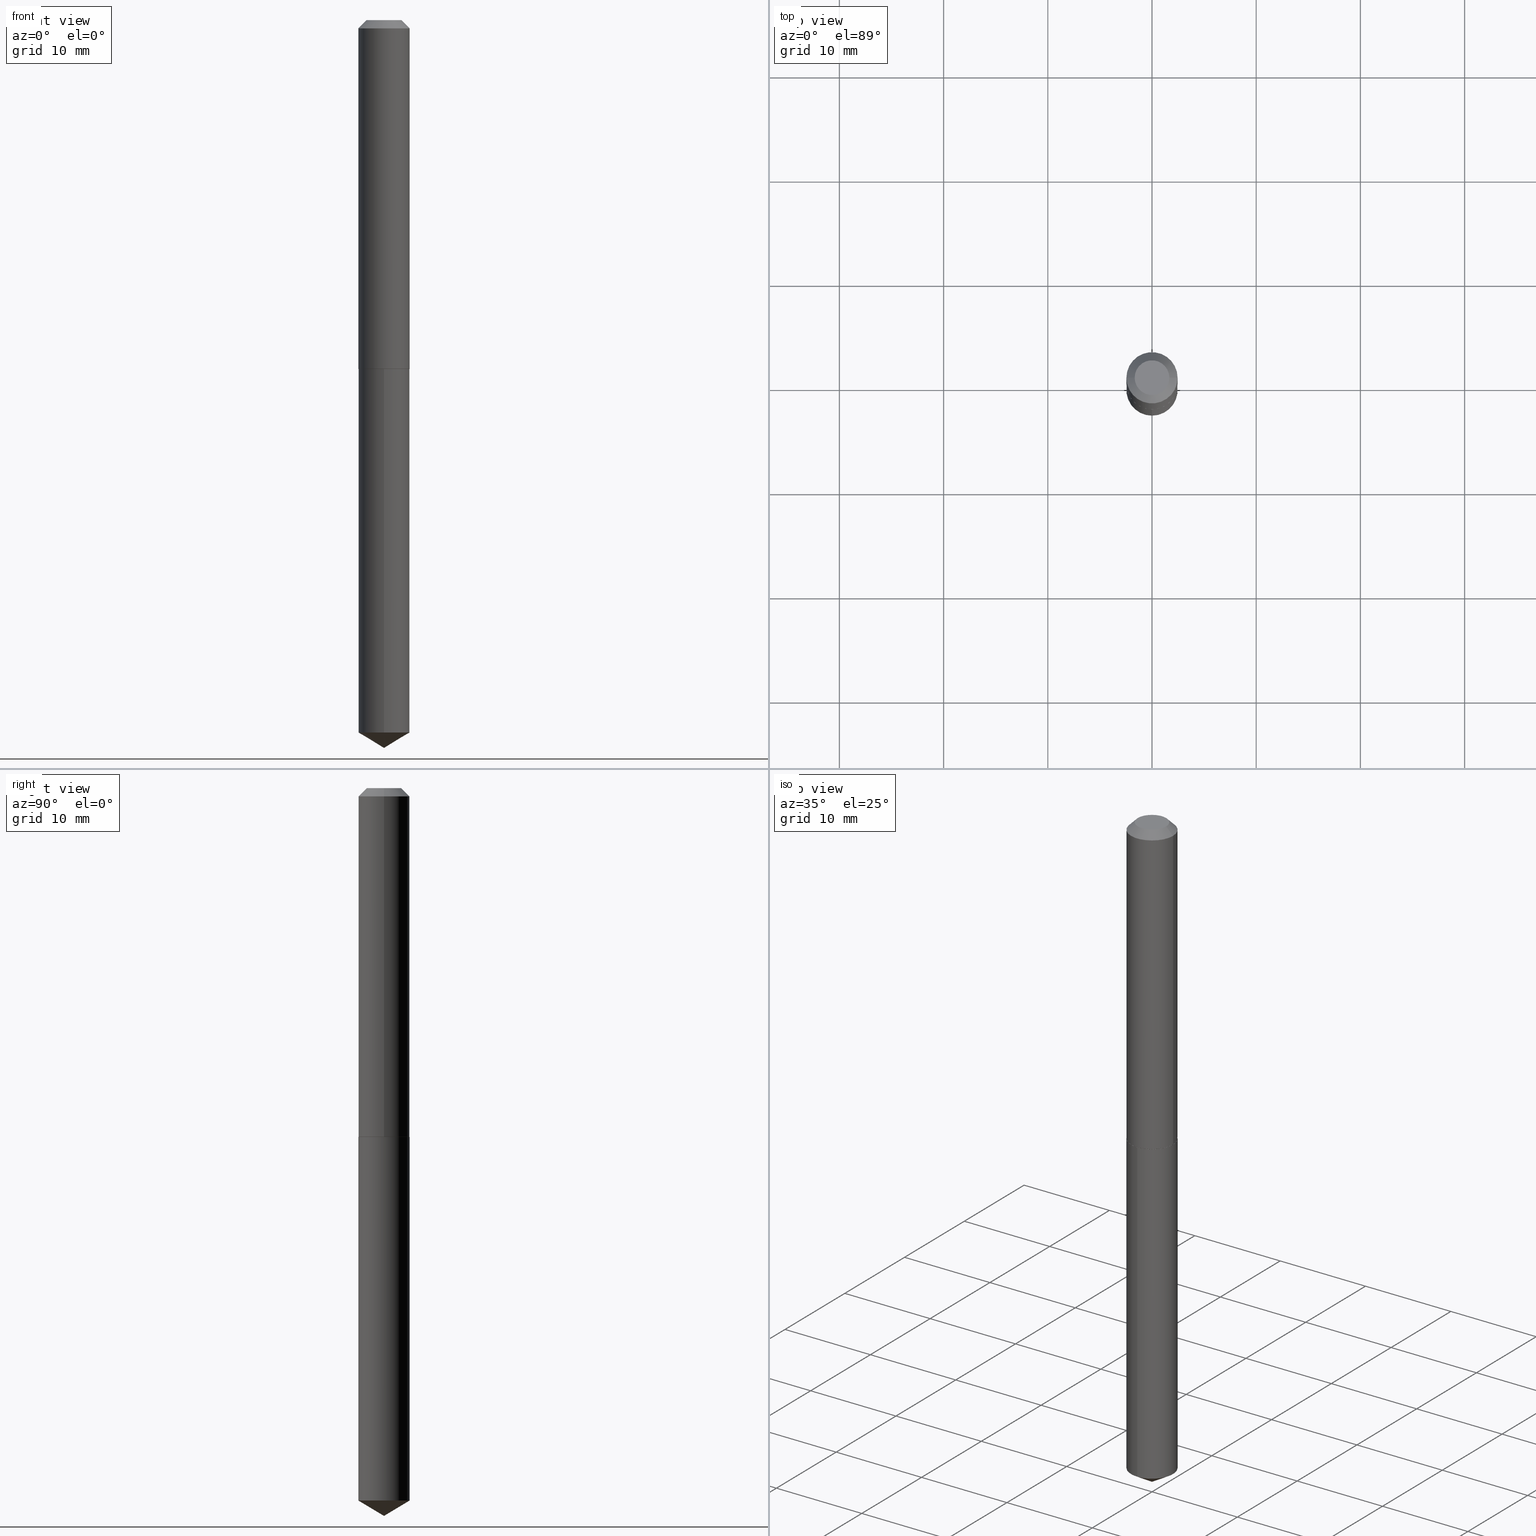
[diagram: canonical four-view strip — front | top / right | iso, engineering-drawing reading convention]
A machine part, canonical four-view strip (front | top / right | iso — engineering-drawing reading convention). The complete STEP part file that produces these views, byte-faithful:
ISO-10303-21;
HEADER;
FILE_DESCRIPTION (( 'STEP AP203' ),
    '1' );
FILE_NAME ('51010.STEP',
    '2024-04-22T18:12:38',
    ( '' ),
    ( '' ),
    'SwSTEP 2.0',
    'SolidWorks 2023',
    '' );
FILE_SCHEMA (( 'CONFIG_CONTROL_DESIGN' ));
ENDSEC;

DATA;
#1 = FACE_OUTER_BOUND ( 'NONE', #43, .T. ) ;
#2 = PLANE ( 'NONE',  #269 ) ;
#3 = DATE_AND_TIME ( #303, #327 ) ;
#4 = DIRECTION ( 'NONE',  ( -2.445415493139380021E-29, 3.491557686159059033E-15, 1.000000000000000000 ) ) ;
#5 = CONICAL_SURFACE ( 'NONE', #381, 0.09675000000000000266, 0.7853981633974452814 ) ;
#6 = PERSON_AND_ORGANIZATION ( #203, #136 ) ;
#7 = EDGE_CURVE ( 'NONE', #130, #347, #88, .T. ) ;
#8 = CARTESIAN_POINT ( 'NONE',  ( 0.09675000000000007205, -6.756016390661467302E-16, 4.717701030582570626E-30 ) ) ;
#9 = PERSON_AND_ORGANIZATION_ROLE ( 'design_owner' ) ;
#10 = ORIENTED_EDGE ( 'NONE', *, *, #385, .F. ) ;
#11 = APPLICATION_PROTOCOL_DEFINITION ( 'international standard', 'config_control_design', 1994, #166 ) ;
#12 = CIRCLE ( 'NONE', #135, 0.09675000000000000266 ) ;
#13 = ORIENTED_EDGE ( 'NONE', *, *, #118, .F. ) ;
#14 = VERTEX_POINT ( 'NONE', #48 ) ;
#15 = DIRECTION ( 'NONE',  ( -0.7071067811864509833, 7.493145998870005484E-15, 0.7071067811866440511 ) ) ;
#16 = DIRECTION ( 'NONE',  ( -1.000000000000000000, 6.982962677686265922E-15, -4.876176775795935793E-29 ) ) ;
#17 = APPROVAL ( #307, 'UNSPECIFIED' ) ;
#18 = ORIENTED_EDGE ( 'NONE', *, *, #98, .T. ) ;
#19 = DIRECTION ( 'NONE',  ( 1.000000000000000000, -6.982962677686265133E-15, 0.000000000000000000 ) ) ;
#20 = ORIENTED_EDGE ( 'NONE', *, *, #305, .T. ) ;
#21 = CARTESIAN_POINT ( 'NONE',  ( -6.756016390660803673E-16, -0.09675000000000941180, -2.691866735109083031 ) ) ;
#22 = ORIENTED_EDGE ( 'NONE', *, *, #157, .T. ) ;
#23 = DIRECTION ( 'NONE',  ( -2.445468806185136597E-29, 3.491481338843145583E-15, 1.000000000000000000 ) ) ;
#24 = DIRECTION ( 'NONE',  ( -2.445468806185136597E-29, 3.491481338843145583E-15, 1.000000000000000000 ) ) ;
#25 = ADVANCED_FACE ( 'NONE', ( #160 ), #5, .T. ) ;
#26 = CARTESIAN_POINT ( 'NONE',  ( 3.223127886552009797E-29, -4.601772404595266423E-15, -1.318000000000000060 ) ) ;
#27 = CC_DESIGN_APPROVAL ( #325, ( #334 ) ) ;
#28 = LINE ( 'NONE', #205, #264 ) ;
#29 = DIRECTION ( 'NONE',  ( -6.982962677686265922E-15, -1.000000000000000000, 2.823615497327403880E-15 ) ) ;
#30 = ADVANCED_FACE ( 'NONE', ( #292 ), #87, .T. ) ;
#31 = PRODUCT ( '51010', '51010', '', ( #277 ) ) ;
#32 = CARTESIAN_POINT ( 'NONE',  ( -6.756016390661139925E-16, -0.09675000000000461009, -1.318499999999999561 ) ) ;
#33 = LOCAL_TIME ( 14, 12, 38.00000000000000000, #103 ) ;
#34 = APPROVAL_STATUS ( 'not_yet_approved' ) ;
#35 = DATE_TIME_ROLE ( 'classification_date' ) ;
#36 = EDGE_CURVE ( 'NONE', #78, #74, #122, .T. ) ;
#37 = EDGE_LOOP ( 'NONE', ( #50, #22, #255, #288 ) ) ;
#38 = VECTOR ( 'NONE', #15, 39.37007874015748143 ) ;
#39 = LINE ( 'NONE', #8, #185 ) ;
#40 = APPROVAL_PERSON_ORGANIZATION ( #243, #148, #212 ) ;
#41 = DIRECTION ( 'NONE',  ( 1.000000000000000000, 0.000000000000000000, 0.000000000000000000 ) ) ;
#42 = AXIS2_PLACEMENT_3D ( 'NONE', #143, #367, #29 ) ;
#43 = EDGE_LOOP ( 'NONE', ( #326, #308 ) ) ;
#44 = ORIENTED_EDGE ( 'NONE', *, *, #331, .F. ) ;
#45 = LINE ( 'NONE', #83, #38 ) ;
#46 = CC_DESIGN_PERSON_AND_ORGANIZATION_ASSIGNMENT ( #248, #345, ( #172 ) ) ;
#47 = MANIFOLD_SOLID_BREP ( 'Body-Move/Copy2[1]', #151 ) ;
#48 = CARTESIAN_POINT ( 'NONE',  ( 6.874500968479628186E-16, 0.09674999999999060740, -2.691866735109083919 ) ) ;
#49 = DIRECTION ( 'NONE',  ( 1.000000000000000000, -6.982962677686265133E-15, 0.000000000000000000 ) ) ;
#50 = ORIENTED_EDGE ( 'NONE', *, *, #141, .F. ) ;
#51 = AXIS2_PLACEMENT_3D ( 'NONE', #167, #328, #146 ) ;
#52 = DIMENSIONAL_EXPONENTS ( 1.000000000000000000, 0.000000000000000000, 0.000000000000000000, 0.000000000000000000, 0.000000000000000000, 0.000000000000000000, 0.000000000000000000 ) ;
#53 = CARTESIAN_POINT ( 'NONE',  ( 3.224350620955103159E-29, -4.603518145264688715E-15, -1.318500000000000227 ) ) ;
#54 = AXIS2_PLACEMENT_3D ( 'NONE', #126, #100, #16 ) ;
#55 = DIRECTION ( 'NONE',  ( 2.445468806185136597E-29, -3.491481338843145583E-15, -1.000000000000000000 ) ) ;
#56 = LINE ( 'NONE', #170, #81 ) ;
#57 = ADVANCED_FACE ( 'NONE', ( #294 ), #59, .T. ) ;
#58 = FACE_OUTER_BOUND ( 'NONE', #260, .T. ) ;
#59 = CONICAL_SURFACE ( 'NONE', #162, 65.52281426576860213, 1.029744258676655644 ) ;
#60 = DIRECTION ( 'NONE',  ( -6.982962677686265922E-15, -1.000000000000000000, 2.823615497327403880E-15 ) ) ;
#61 = CARTESIAN_POINT ( 'NONE',  ( 0.06550000000000000266, -6.111122959886398953E-16, -1.530808498896842893E-19 ) ) ;
#62 = ADVANCED_FACE ( 'NONE', ( #300 ), #270, .T. ) ;
#63 = CARTESIAN_POINT ( 'NONE',  ( 6.874500968479290948E-16, 0.09674999999999539524, -1.318500000000000227 ) ) ;
#64 = DIRECTION ( 'NONE',  ( -2.445415493139380021E-29, 3.491557686159059033E-15, 1.000000000000000000 ) ) ;
#65 = CIRCLE ( 'NONE', #213, 0.09675000000000000266 ) ;
#66 = DATE_AND_TIME ( #368, #196 ) ;
#67 = PERSON_AND_ORGANIZATION ( #203, #136 ) ;
#68 = PLANE ( 'NONE',  #54 ) ;
#69 = DATE_AND_TIME ( #339, #102 ) ;
#70 =( LENGTH_UNIT ( ) NAMED_UNIT ( * ) SI_UNIT ( $, .METRE. ) );
#71 = ORIENTED_EDGE ( 'NONE', *, *, #377, .T. ) ;
#72 = CALENDAR_DATE ( 2024, 22, 4 ) ;
#73 = ORIENTED_EDGE ( 'NONE', *, *, #36, .F. ) ;
#74 = VERTEX_POINT ( 'NONE', #114 ) ;
#75 = DIRECTION ( 'NONE',  ( 2.445415493139379741E-29, -3.491557686159059033E-15, -1.000000000000000000 ) ) ;
#76 = ADVANCED_FACE ( 'NONE', ( #206 ), #390, .T. ) ;
#77 = AXIS2_PLACEMENT_3D ( 'NONE', #329, #199, #286 ) ;
#78 = VERTEX_POINT ( 'NONE', #32 ) ;
#79 = ORIENTED_EDGE ( 'NONE', *, *, #36, .T. ) ;
#80 = ORIENTED_EDGE ( 'NONE', *, *, #176, .F. ) ;
#81 = VECTOR ( 'NONE', #173, 39.37007874015748143 ) ;
#82 = ADVANCED_BREP_SHAPE_REPRESENTATION ( '51010', ( #47, #174, #186 ), #121 ) ;
#83 = CARTESIAN_POINT ( 'NONE',  ( -0.09675000000000014144, -3.914322307747367897E-15, -1.318000000000000060 ) ) ;
#84 = VECTOR ( 'NONE', #229, 39.37007874015748143 ) ;
#85 = DIRECTION ( 'NONE',  ( -2.445468806185136597E-29, 3.491481338843145583E-15, 1.000000000000000000 ) ) ;
#86 = CARTESIAN_POINT ( 'NONE',  ( -0.09625000000000009936, -3.916971534921479886E-15, -1.318500000000000227 ) ) ;
#87 = CYLINDRICAL_SURFACE ( 'NONE', #239, 0.09675000000000000266 ) ;
#88 = CIRCLE ( 'NONE', #309, 0.09625000000000009936 ) ;
#89 = ADVANCED_FACE ( 'NONE', ( #235 ), #231, .T. ) ;
#90 = CARTESIAN_POINT ( 'NONE',  ( 3.743544432386673062E-48, -5.344789307371237567E-34, -1.530808498934197508E-19 ) ) ;
#91 = CIRCLE ( 'NONE', #197, 0.06550000000000000266 ) ;
#92 = CARTESIAN_POINT ( 'NONE',  ( -0.09675000000000007205, 6.874500968478974418E-16, -4.759069699821624739E-30 ) ) ;
#93 = DIRECTION ( 'NONE',  ( 1.000000000000000000, -6.982962677686265922E-15, 0.000000000000000000 ) ) ;
#94 = VECTOR ( 'NONE', #362, 39.37007874015748143 ) ;
#95 = APPROVAL_DATE_TIME ( #373, #325 ) ;
#96 = ADVANCED_FACE ( 'NONE', ( #58 ), #295, .T. ) ;
#97 = SHAPE_DEFINITION_REPRESENTATION ( #177, #82 ) ;
#98 = EDGE_CURVE ( 'NONE', #14, #315, #169, .T. ) ;
#99 = PERSON_AND_ORGANIZATION ( #203, #136 ) ;
#100 = DIRECTION ( 'NONE',  ( 2.438088387897960049E-29, -3.491481338843145188E-15, -1.000000000000000000 ) ) ;
#101 = ORIENTED_EDGE ( 'NONE', *, *, #338, .T. ) ;
#102 = LOCAL_TIME ( 14, 12, 38.00000000000000000, #127 ) ;
#103 = COORDINATED_UNIVERSAL_TIME_OFFSET ( 5, 0, .BEHIND. ) ;
#104 = CC_DESIGN_PERSON_AND_ORGANIZATION_ASSIGNMENT ( #67, #237, ( #363 ) ) ;
#105 = ORIENTED_EDGE ( 'NONE', *, *, #348, .F. ) ;
#106 = CARTESIAN_POINT ( 'NONE',  ( 3.223127886552009797E-29, -4.601772404595266423E-15, -1.318000000000000060 ) ) ;
#107 = CARTESIAN_POINT ( 'NONE',  ( 3.224350620955103159E-29, -4.603518145264688715E-15, -1.318500000000000227 ) ) ;
#108 = CARTESIAN_POINT ( 'NONE',  ( 0.09625000000000009936, -5.275628302991992044E-15, -1.318500000000000227 ) ) ;
#109 = AXIS2_PLACEMENT_3D ( 'NONE', #219, #75, #221 ) ;
#110 = VERTEX_POINT ( 'NONE', #145 ) ;
#111 = ORIENTED_EDGE ( 'NONE', *, *, #153, .F. ) ;
#112 = CARTESIAN_POINT ( 'NONE',  ( 3.743544432386673062E-48, -5.344789307371237567E-34, -1.530808498934197508E-19 ) ) ;
#113 = CC_DESIGN_PERSON_AND_ORGANIZATION_ASSIGNMENT ( #99, #342, ( #334 ) ) ;
#114 = CARTESIAN_POINT ( 'NONE',  ( 6.874500968479629173E-16, 0.09674999999999539524, -1.318500000000000227 ) ) ;
#115 = FACE_OUTER_BOUND ( 'NONE', #129, .T. ) ;
#116 = CARTESIAN_POINT ( 'NONE',  ( 3.223127886552009797E-29, -4.601772404595266423E-15, -1.318000000000000060 ) ) ;
#117 = DIRECTION ( 'NONE',  ( -2.445415493139380021E-29, 3.491557686159059033E-15, 1.000000000000000000 ) ) ;
#118 = EDGE_CURVE ( 'NONE', #384, #194, #56, .T. ) ;
#119 = CARTESIAN_POINT ( 'NONE',  ( 6.111325827341571309E-30, -8.345795111131001064E-15, -1.318500000000000227 ) ) ;
#120 = DIRECTION ( 'NONE',  ( -2.445468806185136597E-29, 3.491481338843145583E-15, 1.000000000000000000 ) ) ;
#121 =( GEOMETRIC_REPRESENTATION_CONTEXT ( 3 ) GLOBAL_UNCERTAINTY_ASSIGNED_CONTEXT ( ( #351 ) ) GLOBAL_UNIT_ASSIGNED_CONTEXT ( ( #337, #306, #181 ) ) REPRESENTATION_CONTEXT ( 'NONE', 'WORKASPACE' ) );
#122 = CIRCLE ( 'NONE', #340, 0.09675000000000000266 ) ;
#123 = PERSON_AND_ORGANIZATION_ROLE ( 'creator' ) ;
#124 = CARTESIAN_POINT ( 'NONE',  ( -0.09675000000000000266, -1.667990501369159630E-15, -0.03125000000000019429 ) ) ;
#125 = PERSON_AND_ORGANIZATION ( #203, #136 ) ;
#126 = CARTESIAN_POINT ( 'NONE',  ( 1.871772216193336531E-48, -2.672394653685618784E-34, -7.654042494670987541E-20 ) ) ;
#127 = COORDINATED_UNIVERSAL_TIME_OFFSET ( 5, 0, .BEHIND. ) ;
#128 = APPLICATION_PROTOCOL_DEFINITION ( 'international standard', 'config_control_design', 1994, #222 ) ;
#129 = EDGE_LOOP ( 'NONE', ( #79, #346 ) ) ;
#130 = VERTEX_POINT ( 'NONE', #86 ) ;
#131 = DIRECTION ( 'NONE',  ( -6.982962677686265922E-15, -1.000000000000000000, 3.468864327941585142E-15 ) ) ;
#132 = ORIENTED_EDGE ( 'NONE', *, *, #311, .T. ) ;
#133 = DIRECTION ( 'NONE',  ( -5.985567269335947590E-15, -0.8571673007021111124, 0.5150380749100561539 ) ) ;
#134 = ORIENTED_EDGE ( 'NONE', *, *, #183, .F. ) ;
#135 = AXIS2_PLACEMENT_3D ( 'NONE', #361, #240, #93 ) ;
#136 = ORGANIZATION ( 'UNSPECIFIED', 'UNSPECIFIED', '' ) ;
#137 = ORIENTED_EDGE ( 'NONE', *, *, #311, .F. ) ;
#138 = CARTESIAN_POINT ( 'NONE',  ( 6.724892606133293096E-29, -9.601783636937413722E-15, -2.750000000000000000 ) ) ;
#139 = ORIENTED_EDGE ( 'NONE', *, *, #176, .T. ) ;
#140 = DIRECTION ( 'NONE',  ( -6.982962677686265922E-15, -1.000000000000000000, 3.468864327941585142E-15 ) ) ;
#141 = EDGE_CURVE ( 'NONE', #378, #194, #332, .T. ) ;
#142 = VECTOR ( 'NONE', #354, 39.37007874015748143 ) ;
#143 = CARTESIAN_POINT ( 'NONE',  ( 3.224350620955102598E-29, -4.603518145264687138E-15, -1.318499999999999783 ) ) ;
#144 = DIRECTION ( 'NONE',  ( -2.445415493139380021E-29, 3.491557686159059033E-15, 1.000000000000000000 ) ) ;
#145 = CARTESIAN_POINT ( 'NONE',  ( 0.09675000000000014144, -5.277374043661413548E-15, -1.318000000000000060 ) ) ;
#146 = DIRECTION ( 'NONE',  ( -6.982962677686265922E-15, -1.000000000000000000, 5.647230994654807760E-15 ) ) ;
#147 = CIRCLE ( 'NONE', #204, 0.09625000000000009936 ) ;
#148 = APPROVAL ( #372, 'UNSPECIFIED' ) ;
#149 = CARTESIAN_POINT ( 'NONE',  ( -0.09675000000000014144, -3.914322307747367897E-15, -1.318000000000000060 ) ) ;
#150 = CARTESIAN_POINT ( 'NONE',  ( 0.000000000000000000, 0.000000000000000000, 0.000000000000000000 ) ) ;
#151 = CLOSED_SHELL ( 'NONE', ( #30, #57, #234, #89, #247 ) ) ;
#152 = DIRECTION ( 'NONE',  ( 0.000000000000000000, 0.000000000000000000, 1.000000000000000000 ) ) ;
#153 = EDGE_CURVE ( 'NONE', #218, #384, #388, .T. ) ;
#154 = AXIS2_PLACEMENT_3D ( 'NONE', #360, #323, #190 ) ;
#155 = APPROVAL_DATE_TIME ( #66, #148 ) ;
#156 = DIRECTION ( 'NONE',  ( 1.000000000000000000, -6.982962677686261977E-15, 0.000000000000000000 ) ) ;
#157 = EDGE_CURVE ( 'NONE', #378, #110, #281, .T. ) ;
#158 = ORIENTED_EDGE ( 'NONE', *, *, #377, .F. ) ;
#159 = CARTESIAN_POINT ( 'NONE',  ( 6.724892606133293096E-29, -9.601783636937413722E-15, -2.750000000000000000 ) ) ;
#160 = FACE_OUTER_BOUND ( 'NONE', #353, .T. ) ;
#161 = CYLINDRICAL_SURFACE ( 'NONE', #154, 0.09675000000000007205 ) ;
#162 = AXIS2_PLACEMENT_3D ( 'NONE', #302, #64, #140 ) ;
#163 = ORIENTED_EDGE ( 'NONE', *, *, #348, .T. ) ;
#164 = DIRECTION ( 'NONE',  ( 1.000000000000000000, -6.982962677686261977E-15, 0.000000000000000000 ) ) ;
#165 = DIRECTION ( 'NONE',  ( -1.000000000000000000, 6.982962677686265922E-15, 0.000000000000000000 ) ) ;
#166 = APPLICATION_CONTEXT ( 'configuration controlled 3d designs of mechanical parts and assemblies' ) ;
#167 = CARTESIAN_POINT ( 'NONE',  ( 6.582802912753103572E-29, -9.398707325149981117E-15, -2.691866735109083475 ) ) ;
#168 = EDGE_CURVE ( 'NONE', #74, #78, #207, .T. ) ;
#169 = CIRCLE ( 'NONE', #51, 0.09675000000000000266 ) ;
#170 = CARTESIAN_POINT ( 'NONE',  ( -0.09675000000000000266, 5.664928472272973338E-16, -0.03125000000000019429 ) ) ;
#171 = CARTESIAN_POINT ( 'NONE',  ( 6.582802912753103572E-29, -9.398707325149981117E-15, -2.691866735109083475 ) ) ;
#172 = SECURITY_CLASSIFICATION ( '', '', #375 ) ;
#173 = DIRECTION ( 'NONE',  ( -0.7071067811865453523, 2.468850131082234184E-15, -0.7071067811865496822 ) ) ;
#174 = MANIFOLD_SOLID_BREP ( 'Body-Move/Copy2[2]', #316 ) ;
#175 = DIRECTION ( 'NONE',  ( -6.982962677686265922E-15, -1.000000000000000000, 2.823615497327403880E-15 ) ) ;
#176 = EDGE_CURVE ( 'NONE', #347, #110, #28, .T. ) ;
#177 = PRODUCT_DEFINITION_SHAPE ( 'NONE', 'NONE',  #363 ) ;
#178 = AXIS2_PLACEMENT_3D ( 'NONE', #202, #198, #232 ) ;
#179 = DATE_TIME_ROLE ( 'creation_date' ) ;
#180 = VECTOR ( 'NONE', #133, 39.37007874015748143 ) ;
#181 =( NAMED_UNIT ( * ) SI_UNIT ( $, .STERADIAN. ) SOLID_ANGLE_UNIT ( ) );
#182 = COORDINATED_UNIVERSAL_TIME_OFFSET ( 5, 0, .BEHIND. ) ;
#183 = EDGE_CURVE ( 'NONE', #315, #14, #65, .T. ) ;
#184 = APPROVAL_ROLE ( '' ) ;
#185 = VECTOR ( 'NONE', #275, 39.37007874015748143 ) ;
#186 = AXIS2_PLACEMENT_3D ( 'NONE', #150, #152, #41 ) ;
#187 = ORIENTED_EDGE ( 'NONE', *, *, #192, .F. ) ;
#188 = ADVANCED_FACE ( 'NONE', ( #1 ), #2, .F. ) ;
#189 = ORIENTED_EDGE ( 'NONE', *, *, #338, .F. ) ;
#190 = DIRECTION ( 'NONE',  ( 1.000000000000000000, -6.982962677686265922E-15, 4.876176775795935232E-29 ) ) ;
#191 = ORIENTED_EDGE ( 'NONE', *, *, #141, .T. ) ;
#192 = EDGE_CURVE ( 'NONE', #14, #74, #335, .T. ) ;
#193 = VERTEX_POINT ( 'NONE', #370 ) ;
#194 = VERTEX_POINT ( 'NONE', #124 ) ;
#195 = DIRECTION ( 'NONE',  ( -2.445468806185136597E-29, 3.491481338843145583E-15, 1.000000000000000000 ) ) ;
#196 = LOCAL_TIME ( 14, 12, 38.00000000000000000, #276 ) ;
#197 = AXIS2_PLACEMENT_3D ( 'NONE', #112, #350, #257 ) ;
#198 = DIRECTION ( 'NONE',  ( 2.445468806185136597E-29, -3.491481338843145583E-15, -1.000000000000000000 ) ) ;
#199 = DIRECTION ( 'NONE',  ( -2.445468806185136597E-29, 3.491481338843145583E-15, 1.000000000000000000 ) ) ;
#200 = DIRECTION ( 'NONE',  ( -2.445468806185136597E-29, 3.491481338843145583E-15, 1.000000000000000000 ) ) ;
#201 = ADVANCED_FACE ( 'NONE', ( #241 ), #68, .F. ) ;
#202 = CARTESIAN_POINT ( 'NONE',  ( 7.642090019328598283E-31, -1.091087918388489651E-16, -0.03125000000000019429 ) ) ;
#203 = PERSON ( 'UNSPECIFIED', 'UNSPECIFIED', 'UNSPECIFIED', ('UNSPECIFIED'), ('UNSPECIFIED'), ('UNSPECIFIED') ) ;
#204 = AXIS2_PLACEMENT_3D ( 'NONE', #53, #320, #164 ) ;
#205 = CARTESIAN_POINT ( 'NONE',  ( 0.09675000000000014144, -5.277374043661413548E-15, -1.318000000000000060 ) ) ;
#206 = FACE_OUTER_BOUND ( 'NONE', #37, .T. ) ;
#207 = CIRCLE ( 'NONE', #42, 0.09675000000000000266 ) ;
#208 = PERSON_AND_ORGANIZATION ( #203, #136 ) ;
#209 = VECTOR ( 'NONE', #4, 39.37007874015748143 ) ;
#210 = EDGE_LOOP ( 'NONE', ( #187, #18, #386, #344 ) ) ;
#211 = EDGE_CURVE ( 'NONE', #218, #193, #217, .T. ) ;
#212 = APPROVAL_ROLE ( '' ) ;
#213 = AXIS2_PLACEMENT_3D ( 'NONE', #171, #144, #267 ) ;
#214 = EDGE_LOOP ( 'NONE', ( #44, #101, #134 ) ) ;
#215 = DATE_AND_TIME ( #72, #33 ) ;
#216 = ORIENTED_EDGE ( 'NONE', *, *, #211, .T. ) ;
#217 = LINE ( 'NONE', #272, #250 ) ;
#218 = VERTEX_POINT ( 'NONE', #61 ) ;
#219 = CARTESIAN_POINT ( 'NONE',  ( 3.224350620955102598E-29, -4.603518145264687138E-15, -1.318499999999999783 ) ) ;
#220 = ORIENTED_EDGE ( 'NONE', *, *, #118, .T. ) ;
#221 = DIRECTION ( 'NONE',  ( 6.982962677686265922E-15, 1.000000000000000000, -3.491557686159059033E-15 ) ) ;
#222 = APPLICATION_CONTEXT ( 'configuration controlled 3d designs of mechanical parts and assemblies' ) ;
#223 = APPROVAL_PERSON_ORGANIZATION ( #125, #17, #278 ) ;
#224 = EDGE_LOOP ( 'NONE', ( #285, #341, #73, #245 ) ) ;
#225 = ORIENTED_EDGE ( 'NONE', *, *, #98, .F. ) ;
#226 = PLANE ( 'NONE',  #109 ) ;
#227 = AXIS2_PLACEMENT_3D ( 'NONE', #90, #200, #296 ) ;
#228 = DIRECTION ( 'NONE',  ( 1.000000000000000000, -6.982962677686265133E-15, 0.000000000000000000 ) ) ;
#229 = DIRECTION ( 'NONE',  ( -2.445415493139380021E-29, 3.491557686159059033E-15, 1.000000000000000000 ) ) ;
#230 = EDGE_CURVE ( 'NONE', #194, #193, #376, .T. ) ;
#231 = CYLINDRICAL_SURFACE ( 'NONE', #263, 0.09675000000000000266 ) ;
#232 = DIRECTION ( 'NONE',  ( -1.000000000000000000, 6.982962677686265922E-15, 0.000000000000000000 ) ) ;
#233 = DIRECTION ( 'NONE',  ( -2.438088387897960049E-29, 3.491481338843145188E-15, 1.000000000000000000 ) ) ;
#234 = ADVANCED_FACE ( 'NONE', ( #379 ), #312, .T. ) ;
#235 = FACE_OUTER_BOUND ( 'NONE', #210, .T. ) ;
#236 = DIRECTION ( 'NONE',  ( 0.7071067811865453523, -7.319954787623248157E-15, -0.7071067811865496822 ) ) ;
#237 = PERSON_AND_ORGANIZATION_ROLE ( 'creator' ) ;
#238 = ADVANCED_FACE ( 'NONE', ( #252 ), #343, .T. ) ;
#239 = AXIS2_PLACEMENT_3D ( 'NONE', #359, #265, #175 ) ;
#240 = DIRECTION ( 'NONE',  ( -2.445468806185136597E-29, 3.491481338843145583E-15, 1.000000000000000000 ) ) ;
#241 = FACE_OUTER_BOUND ( 'NONE', #280, .T. ) ;
#242 = CC_DESIGN_SECURITY_CLASSIFICATION ( #172, ( #334 ) ) ;
#243 = PERSON_AND_ORGANIZATION ( #203, #136 ) ;
#244 = ORIENTED_EDGE ( 'NONE', *, *, #371, .T. ) ;
#245 = ORIENTED_EDGE ( 'NONE', *, *, #262, .F. ) ;
#246 = AXIS2_PLACEMENT_3D ( 'NONE', #389, #85, #336 ) ;
#247 = ADVANCED_FACE ( 'NONE', ( #115 ), #226, .F. ) ;
#248 = PERSON_AND_ORGANIZATION ( #203, #136 ) ;
#249 = AXIS2_PLACEMENT_3D ( 'NONE', #106, #23, #49 ) ;
#250 = VECTOR ( 'NONE', #236, 39.37007874015748143 ) ;
#251 = EDGE_LOOP ( 'NONE', ( #20, #132, #105, #80 ) ) ;
#252 = FACE_OUTER_BOUND ( 'NONE', #251, .T. ) ;
#253 = VERTEX_POINT ( 'NONE', #159 ) ;
#254 = DIRECTION ( 'NONE',  ( -2.445415493139380021E-29, 3.491557686159059033E-15, 1.000000000000000000 ) ) ;
#255 = ORIENTED_EDGE ( 'NONE', *, *, #385, .T. ) ;
#256 = LOCAL_TIME ( 14, 12, 38.00000000000000000, #369 ) ;
#257 = DIRECTION ( 'NONE',  ( 1.000000000000000000, -6.982962677686266711E-15, 4.876196730720992146E-29 ) ) ;
#258 = EDGE_LOOP ( 'NONE', ( #189, #319, #225 ) ) ;
#259 = LINE ( 'NONE', #358, #142 ) ;
#260 = EDGE_LOOP ( 'NONE', ( #374, #355, #220, #314 ) ) ;
#261 = LINE ( 'NONE', #138, #180 ) ;
#262 = EDGE_CURVE ( 'NONE', #315, #78, #291, .T. ) ;
#263 = AXIS2_PLACEMENT_3D ( 'NONE', #364, #299, #60 ) ;
#264 = VECTOR ( 'NONE', #266, 39.37007874015748143 ) ;
#265 = DIRECTION ( 'NONE',  ( -2.445415493139380021E-29, 3.491557686159059033E-15, 1.000000000000000000 ) ) ;
#266 = DIRECTION ( 'NONE',  ( 0.7071067811864509833, -2.468850131081245741E-15, 0.7071067811866440511 ) ) ;
#267 = DIRECTION ( 'NONE',  ( -6.982962677686265922E-15, -1.000000000000000000, 5.647230994654807760E-15 ) ) ;
#268 = PRODUCT_RELATED_PRODUCT_CATEGORY ( 'detail', '', ( #31 ) ) ;
#269 = AXIS2_PLACEMENT_3D ( 'NONE', #119, #233, #365 ) ;
#270 = CONICAL_SURFACE ( 'NONE', #324, 0.09675000000000014144, 0.7853981633973118326 ) ;
#271 = DIRECTION ( 'NONE',  ( 1.000000000000000000, -6.982962677686265133E-15, 0.000000000000000000 ) ) ;
#272 = CARTESIAN_POINT ( 'NONE',  ( 0.09675000000000000266, -7.728619731232445277E-16, -0.03125000000000019429 ) ) ;
#273 = CC_DESIGN_APPROVAL ( #148, ( #363 ) ) ;
#274 = CARTESIAN_POINT ( 'NONE',  ( 3.224350620955102598E-29, -4.603518145264687138E-15, -1.318499999999999783 ) ) ;
#275 = DIRECTION ( 'NONE',  ( -2.445468806185136877E-29, 3.491481338843145188E-15, 1.000000000000000000 ) ) ;
#276 = COORDINATED_UNIVERSAL_TIME_OFFSET ( 5, 0, .BEHIND. ) ;
#277 = MECHANICAL_CONTEXT ( 'NONE', #222, 'mechanical' ) ;
#278 = APPROVAL_ROLE ( '' ) ;
#279 = CARTESIAN_POINT ( 'NONE',  ( -0.06550000000000000266, 5.119384513078738681E-16, -1.530808498968089783E-19 ) ) ;
#280 = EDGE_LOOP ( 'NONE', ( #244, #380 ) ) ;
#281 = CIRCLE ( 'NONE', #317, 0.09675000000000014144 ) ;
#282 = ORIENTED_EDGE ( 'NONE', *, *, #7, .T. ) ;
#283 = CARTESIAN_POINT ( 'NONE',  ( -8.955123761791429805E-28, 1.278612180568828214E-13, 36.62007874015748143 ) ) ;
#284 = CC_DESIGN_PERSON_AND_ORGANIZATION_ASSIGNMENT ( #6, #123, ( #334 ) ) ;
#285 = ORIENTED_EDGE ( 'NONE', *, *, #183, .T. ) ;
#286 = DIRECTION ( 'NONE',  ( 1.000000000000000000, -6.982962677686265922E-15, 0.000000000000000000 ) ) ;
#287 = DESIGN_CONTEXT ( 'detailed design', #166, 'design' ) ;
#288 = ORIENTED_EDGE ( 'NONE', *, *, #230, .F. ) ;
#289 = CARTESIAN_POINT ( 'NONE',  ( 3.223127886552009797E-29, -4.601772404595266423E-15, -1.318000000000000060 ) ) ;
#290 = ORIENTED_EDGE ( 'NONE', *, *, #157, .F. ) ;
#291 = LINE ( 'NONE', #382, #84 ) ;
#292 = FACE_OUTER_BOUND ( 'NONE', #224, .T. ) ;
#293 = ADVANCED_FACE ( 'NONE', ( #349 ), #161, .T. ) ;
#294 = FACE_OUTER_BOUND ( 'NONE', #214, .T. ) ;
#295 = CONICAL_SURFACE ( 'NONE', #178, 0.09675000000000000266, 0.7853981633974452814 ) ;
#296 = DIRECTION ( 'NONE',  ( 1.000000000000000000, -6.982962677686266711E-15, 4.876196730720992146E-29 ) ) ;
#297 = CC_DESIGN_DATE_AND_TIME_ASSIGNMENT ( #215, #35, ( #172 ) ) ;
#298 = APPROVAL_PERSON_ORGANIZATION ( #304, #325, #184 ) ;
#299 = DIRECTION ( 'NONE',  ( -2.445415493139380021E-29, 3.491557686159059033E-15, 1.000000000000000000 ) ) ;
#300 = FACE_OUTER_BOUND ( 'NONE', #357, .T. ) ;
#301 = APPROVAL_DATE_TIME ( #3, #17 ) ;
#302 = CARTESIAN_POINT ( 'NONE',  ( -8.955123761791429805E-28, 1.278612180568828214E-13, 36.62007874015748143 ) ) ;
#303 = CALENDAR_DATE ( 2024, 22, 4 ) ;
#304 = PERSON_AND_ORGANIZATION ( #203, #136 ) ;
#305 = EDGE_CURVE ( 'NONE', #347, #130, #147, .T. ) ;
#306 =( NAMED_UNIT ( * ) PLANE_ANGLE_UNIT ( ) SI_UNIT ( $, .RADIAN. ) );
#307 = APPROVAL_STATUS ( 'not_yet_approved' ) ;
#308 = ORIENTED_EDGE ( 'NONE', *, *, #7, .F. ) ;
#309 = AXIS2_PLACEMENT_3D ( 'NONE', #107, #321, #156 ) ;
#310 = CALENDAR_DATE ( 2024, 22, 4 ) ;
#311 = EDGE_CURVE ( 'NONE', #130, #378, #45, .T. ) ;
#312 = CONICAL_SURFACE ( 'NONE', #352, 65.52281426576860213, 1.029744258676655644 ) ;
#313 = LENGTH_MEASURE_WITH_UNIT ( LENGTH_MEASURE( 0.02539999999999999897 ), #70 );
#314 = ORIENTED_EDGE ( 'NONE', *, *, #230, .T. ) ;
#315 = VERTEX_POINT ( 'NONE', #21 ) ;
#316 = CLOSED_SHELL ( 'NONE', ( #25, #293, #238, #188, #62, #76, #96, #201 ) ) ;
#317 = AXIS2_PLACEMENT_3D ( 'NONE', #26, #120, #271 ) ;
#318 = CC_DESIGN_PERSON_AND_ORGANIZATION_ASSIGNMENT ( #208, #9, ( #31 ) ) ;
#319 = ORIENTED_EDGE ( 'NONE', *, *, #331, .T. ) ;
#320 = DIRECTION ( 'NONE',  ( -2.445468806185136597E-29, 3.491481338843145583E-15, 1.000000000000000000 ) ) ;
#321 = DIRECTION ( 'NONE',  ( -2.445468806185136597E-29, 3.491481338843145583E-15, 1.000000000000000000 ) ) ;
#322 = EDGE_LOOP ( 'NONE', ( #163, #191, #158, #10 ) ) ;
#323 = DIRECTION ( 'NONE',  ( -2.445468806185136597E-29, 3.491481338843145583E-15, 1.000000000000000000 ) ) ;
#324 = AXIS2_PLACEMENT_3D ( 'NONE', #116, #24, #228 ) ;
#325 = APPROVAL ( #34, 'UNSPECIFIED' ) ;
#326 = ORIENTED_EDGE ( 'NONE', *, *, #305, .F. ) ;
#327 = LOCAL_TIME ( 14, 12, 38.00000000000000000, #182 ) ;
#328 = DIRECTION ( 'NONE',  ( -2.445415493139380021E-29, 3.491557686159059033E-15, 1.000000000000000000 ) ) ;
#329 = CARTESIAN_POINT ( 'NONE',  ( 7.642090019328598283E-31, -1.091087918388489651E-16, -0.03125000000000019429 ) ) ;
#330 = DIRECTION ( 'NONE',  ( -6.982962677686265922E-15, -1.000000000000000000, 2.823615497327403880E-15 ) ) ;
#331 = EDGE_CURVE ( 'NONE', #253, #315, #261, .T. ) ;
#332 = LINE ( 'NONE', #92, #94 ) ;
#333 = AXIS2_PLACEMENT_3D ( 'NONE', #289, #195, #19 ) ;
#334 = PRODUCT_DEFINITION_FORMATION_WITH_SPECIFIED_SOURCE ( 'ANY', '', #31, .NOT_KNOWN. ) ;
#335 = LINE ( 'NONE', #63, #209 ) ;
#336 = DIRECTION ( 'NONE',  ( 1.000000000000000000, -6.982962677686265922E-15, 4.876176775795935232E-29 ) ) ;
#337 =( CONVERSION_BASED_UNIT ( 'INCH', #313 ) LENGTH_UNIT ( ) NAMED_UNIT ( #52 ) );
#338 = EDGE_CURVE ( 'NONE', #253, #14, #259, .T. ) ;
#339 = CALENDAR_DATE ( 2024, 22, 4 ) ;
#340 = AXIS2_PLACEMENT_3D ( 'NONE', #274, #117, #330 ) ;
#341 = ORIENTED_EDGE ( 'NONE', *, *, #192, .T. ) ;
#342 = PERSON_AND_ORGANIZATION_ROLE ( 'design_supplier' ) ;
#343 = CONICAL_SURFACE ( 'NONE', #249, 0.09675000000000014144, 0.7853981633973118326 ) ;
#344 = ORIENTED_EDGE ( 'NONE', *, *, #168, .F. ) ;
#345 = PERSON_AND_ORGANIZATION_ROLE ( 'classification_officer' ) ;
#346 = ORIENTED_EDGE ( 'NONE', *, *, #168, .T. ) ;
#347 = VERTEX_POINT ( 'NONE', #108 ) ;
#348 = EDGE_CURVE ( 'NONE', #110, #378, #383, .T. ) ;
#349 = FACE_OUTER_BOUND ( 'NONE', #322, .T. ) ;
#350 = DIRECTION ( 'NONE',  ( -2.445468806185136597E-29, 3.491481338843145583E-15, 1.000000000000000000 ) ) ;
#351 = UNCERTAINTY_MEASURE_WITH_UNIT (LENGTH_MEASURE( 1.000000000000000082E-05 ), #337, 'distance_accuracy_value', 'NONE');
#352 = AXIS2_PLACEMENT_3D ( 'NONE', #283, #254, #131 ) ;
#353 = EDGE_LOOP ( 'NONE', ( #111, #216, #71, #13 ) ) ;
#354 = DIRECTION ( 'NONE',  ( 6.090539988449784746E-15, 0.8571673007021146651, 0.5150380749100501587 ) ) ;
#355 = ORIENTED_EDGE ( 'NONE', *, *, #371, .F. ) ;
#356 = CC_DESIGN_DATE_AND_TIME_ASSIGNMENT ( #69, #179, ( #363 ) ) ;
#357 = EDGE_LOOP ( 'NONE', ( #137, #282, #139, #290 ) ) ;
#358 = CARTESIAN_POINT ( 'NONE',  ( 6.725034425412624102E-29, -9.601582309065348619E-15, -2.750000000000000000 ) ) ;
#359 = CARTESIAN_POINT ( 'NONE',  ( 3.224350620955102598E-29, -4.603518145264687138E-15, -1.318499999999999783 ) ) ;
#360 = CARTESIAN_POINT ( 'NONE',  ( 0.000000000000000000, 0.000000000000000000, 0.000000000000000000 ) ) ;
#361 = CARTESIAN_POINT ( 'NONE',  ( 7.642090019328598283E-31, -1.091087918388489651E-16, -0.03125000000000019429 ) ) ;
#362 = DIRECTION ( 'NONE',  ( -2.445468806185136877E-29, 3.491481338843145188E-15, 1.000000000000000000 ) ) ;
#363 = PRODUCT_DEFINITION ( 'UNKNOWN', '', #334, #287 ) ;
#364 = CARTESIAN_POINT ( 'NONE',  ( 3.224350620955102598E-29, -4.603518145264687138E-15, -1.318499999999999783 ) ) ;
#365 = DIRECTION ( 'NONE',  ( 1.000000000000000000, -6.982962677686265922E-15, 4.876176775795935793E-29 ) ) ;
#366 = CC_DESIGN_APPROVAL ( #17, ( #172 ) ) ;
#367 = DIRECTION ( 'NONE',  ( -2.445415493139380021E-29, 3.491557686159059033E-15, 1.000000000000000000 ) ) ;
#368 = CALENDAR_DATE ( 2024, 22, 4 ) ;
#369 = COORDINATED_UNIVERSAL_TIME_OFFSET ( 5, 0, .BEHIND. ) ;
#370 = CARTESIAN_POINT ( 'NONE',  ( 0.09675000000000000266, -7.847104309049952392E-16, -0.03125000000000019429 ) ) ;
#371 = EDGE_CURVE ( 'NONE', #384, #218, #91, .T. ) ;
#372 = APPROVAL_STATUS ( 'not_yet_approved' ) ;
#373 = DATE_AND_TIME ( #310, #256 ) ;
#374 = ORIENTED_EDGE ( 'NONE', *, *, #211, .F. ) ;
#375 = SECURITY_CLASSIFICATION_LEVEL ( 'unclassified' ) ;
#376 = CIRCLE ( 'NONE', #77, 0.09675000000000000266 ) ;
#377 = EDGE_CURVE ( 'NONE', #193, #194, #12, .T. ) ;
#378 = VERTEX_POINT ( 'NONE', #149 ) ;
#379 = FACE_OUTER_BOUND ( 'NONE', #258, .T. ) ;
#380 = ORIENTED_EDGE ( 'NONE', *, *, #153, .T. ) ;
#381 = AXIS2_PLACEMENT_3D ( 'NONE', #387, #55, #165 ) ;
#382 = CARTESIAN_POINT ( 'NONE',  ( -6.756016390661139925E-16, -0.09675000000000461009, -1.318499999999999561 ) ) ;
#383 = CIRCLE ( 'NONE', #333, 0.09675000000000014144 ) ;
#384 = VERTEX_POINT ( 'NONE', #279 ) ;
#385 = EDGE_CURVE ( 'NONE', #110, #193, #39, .T. ) ;
#386 = ORIENTED_EDGE ( 'NONE', *, *, #262, .T. ) ;
#387 = CARTESIAN_POINT ( 'NONE',  ( 7.642090019328598283E-31, -1.091087918388489651E-16, -0.03125000000000019429 ) ) ;
#388 = CIRCLE ( 'NONE', #227, 0.06550000000000000266 ) ;
#389 = CARTESIAN_POINT ( 'NONE',  ( 0.000000000000000000, 0.000000000000000000, 0.000000000000000000 ) ) ;
#390 = CYLINDRICAL_SURFACE ( 'NONE', #246, 0.09675000000000007205 ) ;
ENDSEC;
END-ISO-10303-21;
